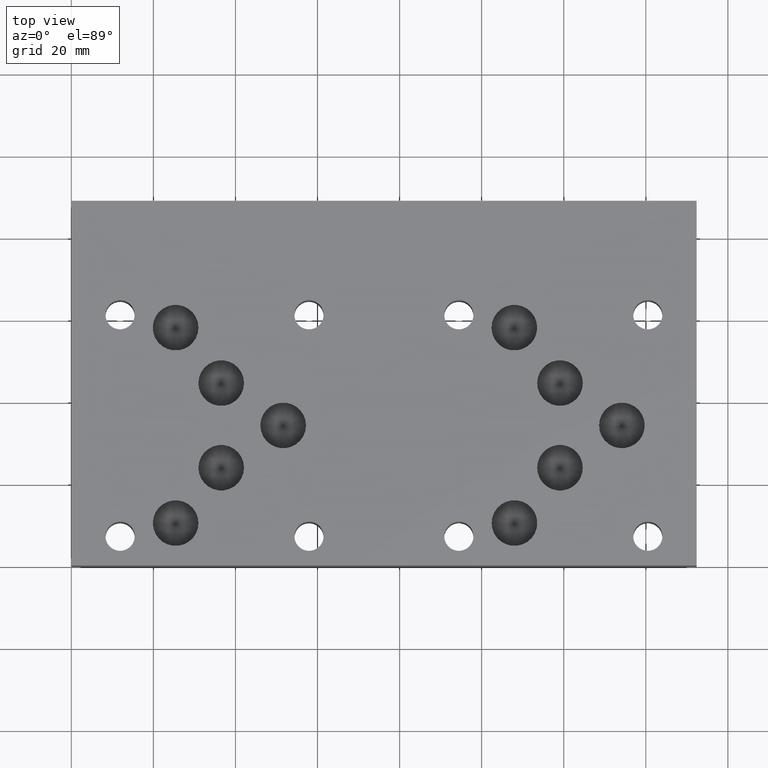
[diagram: clean part render]
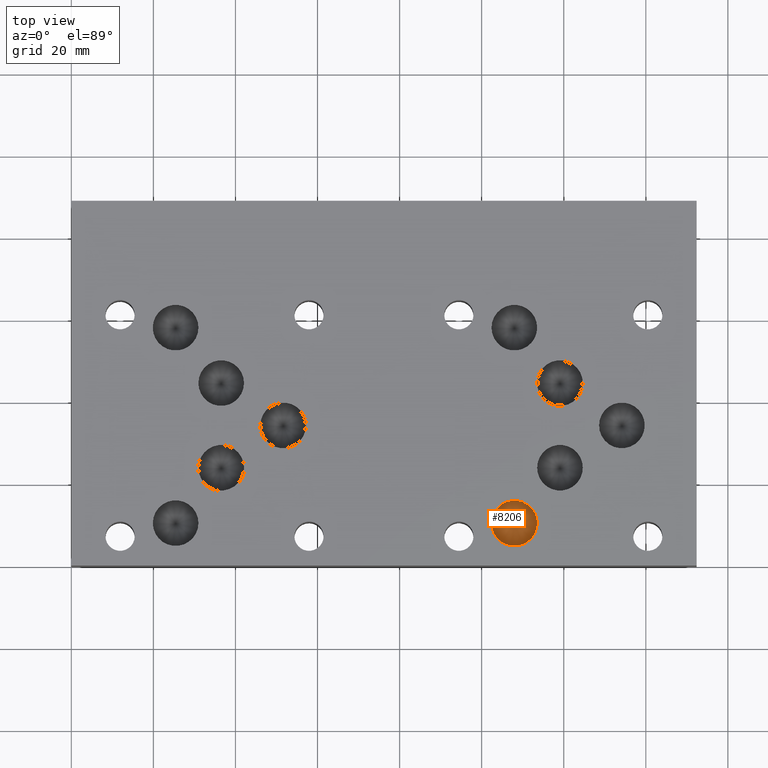
[diagram: same view with one face highlighted and labeled with its STEP entity id]
A machine part, top view. The second image highlights one B-rep face of the part: STEP entity #8206.
In plain terms, the highlighted conical surface has half-angle 60 deg.
Its self-contained STEP definition (entity closure, byte-faithful):
#152=CIRCLE('',#8639,5.5626);
#179=CONICAL_SURFACE('',#8638,2.7813,1.0471975511966);
#924=FACE_OUTER_BOUND('',#1406,.T.);
#1406=EDGE_LOOP('',(#7307,#7308,#7309));
#2226=LINE('',#14093,#3028);
#3028=VECTOR('',#10264,2.7813);
#3998=VERTEX_POINT('',#14090);
#3999=VERTEX_POINT('',#14092);
#5110=EDGE_CURVE('',#3998,#3998,#152,.T.);
#5111=EDGE_CURVE('',#3998,#3999,#2226,.T.);
#7307=ORIENTED_EDGE('',*,*,#5110,.T.);
#7308=ORIENTED_EDGE('',*,*,#5111,.T.);
#7309=ORIENTED_EDGE('',*,*,#5111,.F.);
#8206=ADVANCED_FACE('',(#924),#179,.F.);
#8638=AXIS2_PLACEMENT_3D('',#14089,#10260,#10261);
#8639=AXIS2_PLACEMENT_3D('',#14091,#10262,#10263);
#10260=DIRECTION('center_axis',(0.,0.,1.));
#10261=DIRECTION('ref_axis',(1.,0.,0.));
#10262=DIRECTION('center_axis',(0.,0.,1.));
#10263=DIRECTION('ref_axis',(1.,0.,0.));
#10264=DIRECTION('',(0.866025403784439,1.06057523872491E-16,-0.5));
#14089=CARTESIAN_POINT('Origin',(107.9754,10.3124,20.5826456963029));
#14090=CARTESIAN_POINT('',(102.4128,10.3124,22.18843));
#14091=CARTESIAN_POINT('Origin',(107.9754,10.3124,22.18843));
#14092=CARTESIAN_POINT('',(107.9754,10.3124,18.9768613926058));
#14093=CARTESIAN_POINT('',(105.1941,10.3124,20.5826456963029));